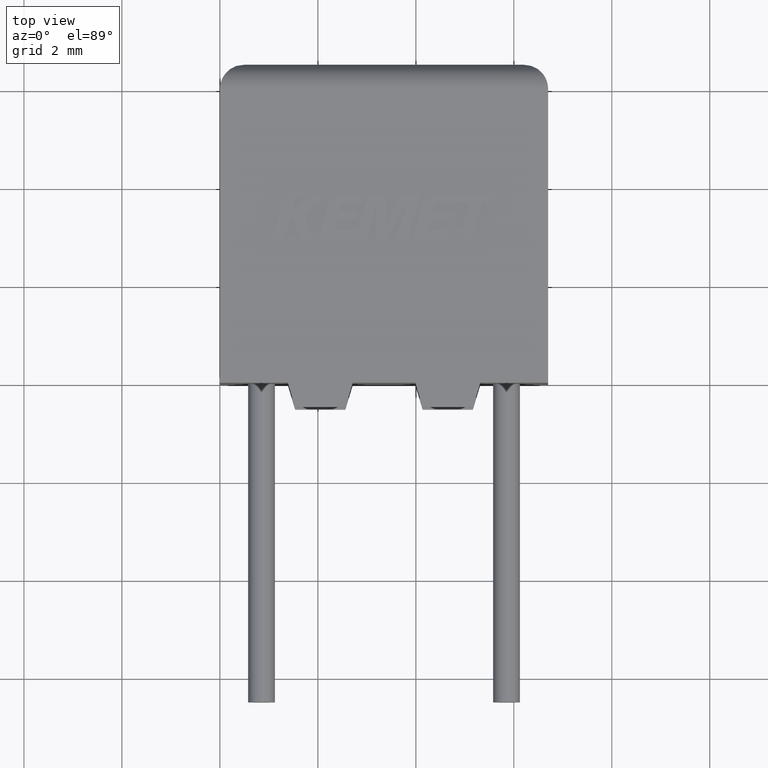
[diagram: clean part render]
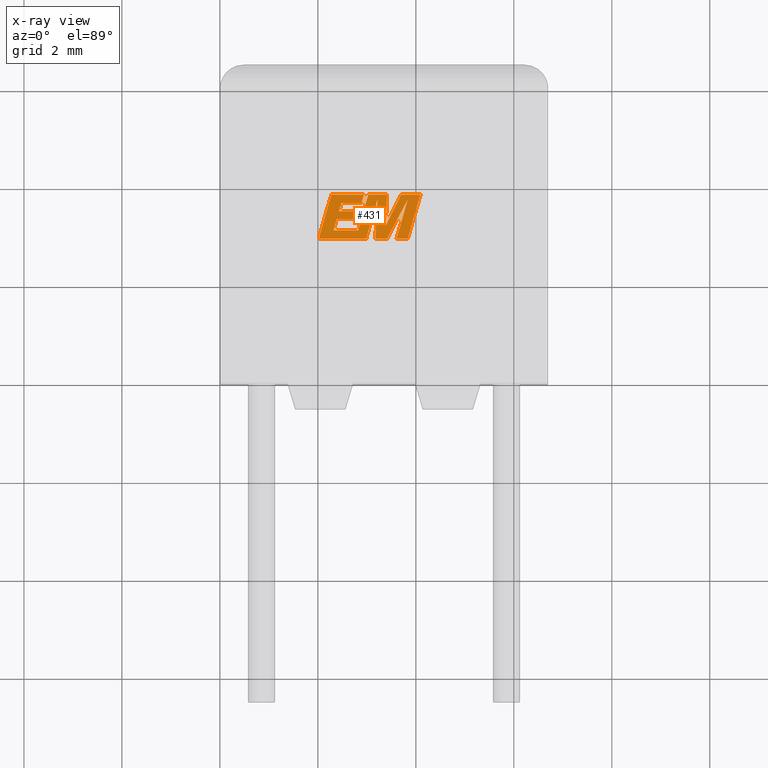
[diagram: x-ray — body ghosted, one internal face saturated and labeled with its STEP entity id]
A machine part, top view, then the same camera in x-ray: the body is ghosted and one INTERNAL B-rep face — a face not visible from any outside direction — is saturated and labeled: STEP entity #431.
In plain terms, the highlighted planar face has unit normal (0, 0, -1).
Its self-contained STEP definition (entity closure, byte-faithful):
#5 = DIRECTION ( 'NONE',  ( 1.000000000000000000, 0.000000000000000000, 0.000000000000000000 ) ) ;
#7 = EDGE_CURVE ( 'NONE', #2830, #1420, #2780, .T. ) ;
#19 = EDGE_CURVE ( 'NONE', #922, #2758, #1514, .T. ) ;
#42 = CARTESIAN_POINT ( 'NONE',  ( 2.482093706379870035, 3.669082942595895513, 3.000000000000000000 ) ) ;
#48 = EDGE_CURVE ( 'NONE', #1420, #922, #1259, .T. ) ;
#60 = LINE ( 'NONE', #42, #1193 ) ;
#88 = LINE ( 'NONE', #329, #885 ) ;
#101 = VECTOR ( 'NONE', #1807, 1000.000000000000227 ) ;
#113 = DIRECTION ( 'NONE',  ( -0.2760118818968561594, -0.9611542233438689076, 0.000000000000000000 ) ) ;
#130 = ORIENTED_EDGE ( 'NONE', *, *, #2369, .F. ) ;
#166 = DIRECTION ( 'NONE',  ( -1.000000000000000000, 0.000000000000000000, 0.000000000000000000 ) ) ;
#174 = ORIENTED_EDGE ( 'NONE', *, *, #1363, .F. ) ;
#175 = LINE ( 'NONE', #1186, #565 ) ;
#236 = ORIENTED_EDGE ( 'NONE', *, *, #19, .F. ) ;
#262 = CARTESIAN_POINT ( 'NONE',  ( 3.606084552952748545, 2.939949999999972530, 3.000000000000000000 ) ) ;
#290 = CARTESIAN_POINT ( 'NONE',  ( 2.433353592070187421, 3.501581241895021623, 3.000000000000000000 ) ) ;
#303 = DIRECTION ( 'NONE',  ( 1.000000000000000000, 4.833865254349439685E-15, 0.000000000000000000 ) ) ;
#312 = DIRECTION ( 'NONE',  ( 1.000000000000000000, 0.000000000000000000, 0.000000000000000000 ) ) ;
#329 = CARTESIAN_POINT ( 'NONE',  ( 2.821297519877196791, 3.111279716422085784, 3.000000000000000000 ) ) ;
#358 = LINE ( 'NONE', #1104, #690 ) ;
#363 = CARTESIAN_POINT ( 'NONE',  ( 2.772327396041934122, 3.335100893027513003, 3.000000000000000000 ) ) ;
#371 = LINE ( 'NONE', #1113, #1285 ) ;
#376 = VECTOR ( 'NONE', #2288, 1000.000000000000000 ) ;
#380 = CARTESIAN_POINT ( 'NONE',  ( 2.986808542158105872, 2.939949999999972530, 3.000000000000000000 ) ) ;
#392 = EDGE_CURVE ( 'NONE', #2758, #687, #1550, .T. ) ;
#431 = ADVANCED_FACE ( 'NONE', ( #3068 ), #833, .T. ) ;
#434 = VERTEX_POINT ( 'NONE', #939 ) ;
#561 = VECTOR ( 'NONE', #2678, 1000.000000000000000 ) ;
#565 = VECTOR ( 'NONE', #2936, 1000.000000000000227 ) ;
#574 = ORIENTED_EDGE ( 'NONE', *, *, #2401, .F. ) ;
#587 = DIRECTION ( 'NONE',  ( -1.000000000000000000, 0.000000000000000000, 0.000000000000000000 ) ) ;
#594 = ORIENTED_EDGE ( 'NONE', *, *, #2408, .F. ) ;
#599 = ORIENTED_EDGE ( 'NONE', *, *, #2327, .F. ) ;
#602 = ORIENTED_EDGE ( 'NONE', *, *, #2472, .F. ) ;
#621 = CARTESIAN_POINT ( 'NONE',  ( 4.093841663165447287, 3.840497543485195120, 3.000000000000000000 ) ) ;
#661 = ORIENTED_EDGE ( 'NONE', *, *, #1647, .F. ) ;
#687 = VERTEX_POINT ( 'NONE', #1336 ) ;
#690 = VECTOR ( 'NONE', #587, 1000.000000000000000 ) ;
#695 = EDGE_CURVE ( 'NONE', #3208, #760, #2124, .T. ) ;
#711 = EDGE_CURVE ( 'NONE', #2205, #1862, #371, .T. ) ;
#728 = VECTOR ( 'NONE', #1353, 1000.000000000000000 ) ;
#747 = VERTEX_POINT ( 'NONE', #1707 ) ;
#752 = EDGE_CURVE ( 'NONE', #2169, #2044, #2406, .T. ) ;
#760 = VERTEX_POINT ( 'NONE', #3163 ) ;
#763 = CARTESIAN_POINT ( 'NONE',  ( 2.772327396041934122, 3.335100893027513003, 3.000000000000000000 ) ) ;
#766 = EDGE_CURVE ( 'NONE', #2044, #2745, #175, .T. ) ;
#780 = ORIENTED_EDGE ( 'NONE', *, *, #2419, .F. ) ;
#785 = VECTOR ( 'NONE', #303, 1000.000000000000000 ) ;
#832 = VERTEX_POINT ( 'NONE', #2998 ) ;
#833 = PLANE ( 'NONE',  #2286 ) ;
#842 = CARTESIAN_POINT ( 'NONE',  ( 3.379780772214605378, 3.197134807802966883, 3.000000000000000000 ) ) ;
#882 = VECTOR ( 'NONE', #1492, 1000.000000000000227 ) ;
#884 = DIRECTION ( 'NONE',  ( 0.2740217765954066076, 0.9617234872620595842, 0.000000000000000000 ) ) ;
#885 = VECTOR ( 'NONE', #2797, 1000.000000000000000 ) ;
#921 = CARTESIAN_POINT ( 'NONE',  ( 3.606084552952748545, 2.939949999999972530, 3.000000000000000000 ) ) ;
#922 = VERTEX_POINT ( 'NONE', #3249 ) ;
#936 = EDGE_LOOP ( 'NONE', ( #594, #2414, #1696, #130, #2429, #2788, #1231, #2005, #661, #574, #599, #1894, #780, #2078, #236, #2097, #2202, #602, #174, #2053, #1384, #1059, #2315 ) ) ;
#939 = CARTESIAN_POINT ( 'NONE',  ( 3.172070264286760644, 2.939949999999972530, 3.000000000000000000 ) ) ;
#942 = CARTESIAN_POINT ( 'NONE',  ( 3.698867635465806103, 3.840497543485195120, 3.000000000000000000 ) ) ;
#957 = VERTEX_POINT ( 'NONE', #1861 ) ;
#965 = EDGE_CURVE ( 'NONE', #1335, #832, #2338, .T. ) ;
#1017 = VERTEX_POINT ( 'NONE', #3112 ) ;
#1059 = ORIENTED_EDGE ( 'NONE', *, *, #695, .F. ) ;
#1090 = DIRECTION ( 'NONE',  ( 0.000000000000000000, 0.000000000000000000, -1.000000000000000000 ) ) ;
#1104 = CARTESIAN_POINT ( 'NONE',  ( 3.414413255620535992, 3.840497543485195120, 3.000000000000000000 ) ) ;
#1113 = CARTESIAN_POINT ( 'NONE',  ( 2.892392369763397308, 3.669082942595895513, 3.000000000000000000 ) ) ;
#1160 = VERTEX_POINT ( 'NONE', #1626 ) ;
#1182 = CARTESIAN_POINT ( 'NONE',  ( 3.834927604257575062, 2.939949999999972530, 3.000000000000000000 ) ) ;
#1186 = CARTESIAN_POINT ( 'NONE',  ( 3.834927604257575062, 2.939949999999972530, 3.000000000000000000 ) ) ;
#1193 = VECTOR ( 'NONE', #312, 1000.000000000000000 ) ;
#1209 = CARTESIAN_POINT ( 'NONE',  ( 2.385856624496192069, 3.335100893027513003, 3.000000000000000000 ) ) ;
#1215 = CARTESIAN_POINT ( 'NONE',  ( 3.030901917078393737, 3.840497543485195120, 3.000000000000000000 ) ) ;
#1231 = ORIENTED_EDGE ( 'NONE', *, *, #1929, .F. ) ;
#1259 = LINE ( 'NONE', #763, #882 ) ;
#1285 = VECTOR ( 'NONE', #3114, 1000.000000000000000 ) ;
#1301 = LINE ( 'NONE', #621, #376 ) ;
#1312 = LINE ( 'NONE', #3087, #785 ) ;
#1329 = LINE ( 'NONE', #1816, #2671 ) ;
#1335 = VERTEX_POINT ( 'NONE', #2080 ) ;
#1336 = CARTESIAN_POINT ( 'NONE',  ( 2.482093706379870035, 3.669082942595895513, 3.000000000000000000 ) ) ;
#1353 = DIRECTION ( 'NONE',  ( 0.4668459304955211997, 0.8843386665637610333, 0.000000000000000000 ) ) ;
#1357 = DIRECTION ( 'NONE',  ( 0.05375259206908266502, 0.9985542843760947251, 0.000000000000000000 ) ) ;
#1363 = EDGE_CURVE ( 'NONE', #957, #1629, #88, .T. ) ;
#1369 = LINE ( 'NONE', #2623, #101 ) ;
#1384 = ORIENTED_EDGE ( 'NONE', *, *, #2629, .F. ) ;
#1420 = VERTEX_POINT ( 'NONE', #363 ) ;
#1459 = CARTESIAN_POINT ( 'NONE',  ( 2.941077719899798826, 3.840497543485195120, 3.000000000000000000 ) ) ;
#1492 = DIRECTION ( 'NONE',  ( 0.2746459304916903932, 0.9615454294334477847, 0.000000000000000000 ) ) ;
#1514 = LINE ( 'NONE', #2759, #1880 ) ;
#1550 = LINE ( 'NONE', #290, #2436 ) ;
#1559 = VERTEX_POINT ( 'NONE', #2316 ) ;
#1573 = VECTOR ( 'NONE', #1606, 1000.000000000000000 ) ;
#1579 = VECTOR ( 'NONE', #3018, 1000.000000000000114 ) ;
#1584 = CARTESIAN_POINT ( 'NONE',  ( 2.322083744593155252, 3.111279716422085784, 3.000000000000000000 ) ) ;
#1606 = DIRECTION ( 'NONE',  ( -1.000000000000000000, 0.000000000000000000, 0.000000000000000000 ) ) ;
#1626 = CARTESIAN_POINT ( 'NONE',  ( 2.986808542158105872, 2.939949999999972530, 3.000000000000000000 ) ) ;
#1629 = VERTEX_POINT ( 'NONE', #1584 ) ;
#1647 = EDGE_CURVE ( 'NONE', #1559, #1160, #1312, .T. ) ;
#1668 = DIRECTION ( 'NONE',  ( 0.2759782365590801034, 0.9611638845408936316, 0.000000000000000000 ) ) ;
#1696 = ORIENTED_EDGE ( 'NONE', *, *, #752, .F. ) ;
#1707 = CARTESIAN_POINT ( 'NONE',  ( 2.275783374213577570, 3.840497543485195120, 3.000000000000000000 ) ) ;
#1785 = DIRECTION ( 'NONE',  ( -0.2762517575166160144, -0.9610853065513907945, 0.000000000000000000 ) ) ;
#1807 = DIRECTION ( 'NONE',  ( -0.05596501978068205152, -0.9984327301130245802, 0.000000000000000000 ) ) ;
#1816 = CARTESIAN_POINT ( 'NONE',  ( 3.172070264286760644, 2.939949999999972530, 3.000000000000000000 ) ) ;
#1835 = CARTESIAN_POINT ( 'NONE',  ( 0.03041219601240493370, -2.057123217232910584, 2.999999999999999112 ) ) ;
#1861 = CARTESIAN_POINT ( 'NONE',  ( 2.821297519877196791, 3.111279716422085784, 3.000000000000000000 ) ) ;
#1862 = VERTEX_POINT ( 'NONE', #1459 ) ;
#1867 = CARTESIAN_POINT ( 'NONE',  ( 2.433353592070187421, 3.501581241895021623, 3.000000000000000000 ) ) ;
#1870 = CARTESIAN_POINT ( 'NONE',  ( 2.275783374213577570, 3.840497543485195120, 3.000000000000000000 ) ) ;
#1880 = VECTOR ( 'NONE', #2514, 1000.000000000000000 ) ;
#1894 = ORIENTED_EDGE ( 'NONE', *, *, #711, .F. ) ;
#1929 = EDGE_CURVE ( 'NONE', #2210, #434, #1369, .T. ) ;
#2005 = ORIENTED_EDGE ( 'NONE', *, *, #2465, .F. ) ;
#2022 = CARTESIAN_POINT ( 'NONE',  ( 3.698867635465806103, 3.840497543485195120, 3.000000000000000000 ) ) ;
#2032 = LINE ( 'NONE', #1215, #2979 ) ;
#2043 = LINE ( 'NONE', #2022, #1579 ) ;
#2044 = VERTEX_POINT ( 'NONE', #1182 ) ;
#2051 = CARTESIAN_POINT ( 'NONE',  ( 2.941077719899798826, 3.840497543485195120, 3.000000000000000000 ) ) ;
#2053 = ORIENTED_EDGE ( 'NONE', *, *, #2211, .F. ) ;
#2078 = ORIENTED_EDGE ( 'NONE', *, *, #392, .F. ) ;
#2080 = CARTESIAN_POINT ( 'NONE',  ( 3.412148185760601748, 2.939949999999972530, 3.000000000000000000 ) ) ;
#2089 = CARTESIAN_POINT ( 'NONE',  ( 3.379780772214605378, 3.197134807802966883, 3.000000000000000000 ) ) ;
#2097 = ORIENTED_EDGE ( 'NONE', *, *, #48, .F. ) ;
#2124 = LINE ( 'NONE', #842, #2440 ) ;
#2162 = CARTESIAN_POINT ( 'NONE',  ( 4.093841663165447287, 3.840497543485195120, 3.000000000000000000 ) ) ;
#2169 = VERTEX_POINT ( 'NONE', #262 ) ;
#2202 = ORIENTED_EDGE ( 'NONE', *, *, #7, .F. ) ;
#2205 = VERTEX_POINT ( 'NONE', #2488 ) ;
#2210 = VERTEX_POINT ( 'NONE', #2473 ) ;
#2211 = EDGE_CURVE ( 'NONE', #1017, #957, #2032, .T. ) ;
#2286 = AXIS2_PLACEMENT_3D ( 'NONE', #1835, #1090, #166 ) ;
#2288 = DIRECTION ( 'NONE',  ( -1.000000000000000000, 0.000000000000000000, 0.000000000000000000 ) ) ;
#2307 = EDGE_CURVE ( 'NONE', #434, #1335, #1329, .T. ) ;
#2311 = CARTESIAN_POINT ( 'NONE',  ( 3.412148185760601748, 2.939949999999972530, 3.000000000000000000 ) ) ;
#2315 = ORIENTED_EDGE ( 'NONE', *, *, #3005, .F. ) ;
#2316 = CARTESIAN_POINT ( 'NONE',  ( 2.016642043262992789, 2.939949999999971642, 3.000000000000000000 ) ) ;
#2327 = EDGE_CURVE ( 'NONE', #1862, #747, #2568, .T. ) ;
#2338 = LINE ( 'NONE', #2311, #728 ) ;
#2342 = VECTOR ( 'NONE', #5, 1000.000000000000000 ) ;
#2354 = CARTESIAN_POINT ( 'NONE',  ( 3.837424850563639911, 3.745544681468894854, 3.000000000000000000 ) ) ;
#2368 = LINE ( 'NONE', #2928, #2561 ) ;
#2369 = EDGE_CURVE ( 'NONE', #832, #2169, #2834, .T. ) ;
#2401 = EDGE_CURVE ( 'NONE', #747, #1559, #3109, .T. ) ;
#2406 = LINE ( 'NONE', #921, #561 ) ;
#2408 = EDGE_CURVE ( 'NONE', #2745, #2802, #1301, .T. ) ;
#2414 = ORIENTED_EDGE ( 'NONE', *, *, #766, .F. ) ;
#2419 = EDGE_CURVE ( 'NONE', #687, #2205, #60, .T. ) ;
#2429 = ORIENTED_EDGE ( 'NONE', *, *, #965, .F. ) ;
#2436 = VECTOR ( 'NONE', #2796, 1000.000000000000000 ) ;
#2440 = VECTOR ( 'NONE', #1357, 1000.000000000000114 ) ;
#2465 = EDGE_CURVE ( 'NONE', #1160, #2210, #2646, .T. ) ;
#2472 = EDGE_CURVE ( 'NONE', #1629, #2830, #2368, .T. ) ;
#2473 = CARTESIAN_POINT ( 'NONE',  ( 3.217009744963004625, 3.741683807247400129, 3.000000000000000000 ) ) ;
#2488 = CARTESIAN_POINT ( 'NONE',  ( 2.892392369763397308, 3.669082942595895513, 3.000000000000000000 ) ) ;
#2514 = DIRECTION ( 'NONE',  ( -1.000000000000000000, 0.000000000000000000, 0.000000000000000000 ) ) ;
#2561 = VECTOR ( 'NONE', #884, 1000.000000000000114 ) ;
#2568 = LINE ( 'NONE', #2051, #1573 ) ;
#2618 = VECTOR ( 'NONE', #2864, 1000.000000000000114 ) ;
#2623 = CARTESIAN_POINT ( 'NONE',  ( 3.217009744963004625, 3.741683807247400129, 3.000000000000000000 ) ) ;
#2629 = EDGE_CURVE ( 'NONE', #760, #1017, #358, .T. ) ;
#2646 = LINE ( 'NONE', #380, #3032 ) ;
#2671 = VECTOR ( 'NONE', #2798, 1000.000000000000000 ) ;
#2678 = DIRECTION ( 'NONE',  ( 1.000000000000000000, 0.000000000000000000, 0.000000000000000000 ) ) ;
#2745 = VERTEX_POINT ( 'NONE', #2162 ) ;
#2758 = VERTEX_POINT ( 'NONE', #1867 ) ;
#2759 = CARTESIAN_POINT ( 'NONE',  ( 2.819879127789272300, 3.501581241895021623, 3.000000000000000000 ) ) ;
#2780 = LINE ( 'NONE', #3240, #2342 ) ;
#2788 = ORIENTED_EDGE ( 'NONE', *, *, #2307, .F. ) ;
#2796 = DIRECTION ( 'NONE',  ( 0.2793947940878287461, 0.9601763114327596105, 0.000000000000000000 ) ) ;
#2797 = DIRECTION ( 'NONE',  ( -1.000000000000000000, 0.000000000000000000, 0.000000000000000000 ) ) ;
#2798 = DIRECTION ( 'NONE',  ( 1.000000000000000000, 0.000000000000000000, 0.000000000000000000 ) ) ;
#2802 = VERTEX_POINT ( 'NONE', #942 ) ;
#2830 = VERTEX_POINT ( 'NONE', #1209 ) ;
#2834 = LINE ( 'NONE', #2354, #3085 ) ;
#2864 = DIRECTION ( 'NONE',  ( -0.2765379750249959967, -0.9610029908221278117, 0.000000000000000000 ) ) ;
#2928 = CARTESIAN_POINT ( 'NONE',  ( 2.322083744593155252, 3.111279716422085784, 3.000000000000000000 ) ) ;
#2936 = DIRECTION ( 'NONE',  ( 0.2763139702539115783, 0.9610674221107072812, 0.000000000000000000 ) ) ;
#2979 = VECTOR ( 'NONE', #1785, 1000.000000000000114 ) ;
#2998 = CARTESIAN_POINT ( 'NONE',  ( 3.837424850563639911, 3.745544681468894854, 3.000000000000000000 ) ) ;
#3005 = EDGE_CURVE ( 'NONE', #2802, #3208, #2043, .T. ) ;
#3018 = DIRECTION ( 'NONE',  ( -0.4443210308329058611, -0.8958676361827030421, 0.000000000000000000 ) ) ;
#3032 = VECTOR ( 'NONE', #1668, 1000.000000000000227 ) ;
#3068 = FACE_OUTER_BOUND ( 'NONE', #936, .T. ) ;
#3085 = VECTOR ( 'NONE', #113, 1000.000000000000114 ) ;
#3087 = CARTESIAN_POINT ( 'NONE',  ( 2.826513806673565554, 2.939949999999971642, 3.000000000000000000 ) ) ;
#3109 = LINE ( 'NONE', #1870, #2618 ) ;
#3112 = CARTESIAN_POINT ( 'NONE',  ( 3.030901917078393737, 3.840497543485195120, 3.000000000000000000 ) ) ;
#3114 = DIRECTION ( 'NONE',  ( 0.2732148821745924439, 0.9619530280415585777, 0.000000000000000000 ) ) ;
#3163 = CARTESIAN_POINT ( 'NONE',  ( 3.414413255620535992, 3.840497543485195120, 3.000000000000000000 ) ) ;
#3208 = VERTEX_POINT ( 'NONE', #2089 ) ;
#3240 = CARTESIAN_POINT ( 'NONE',  ( 2.385856624496192069, 3.335100893027513003, 3.000000000000000000 ) ) ;
#3249 = CARTESIAN_POINT ( 'NONE',  ( 2.819879127789272300, 3.501581241895021623, 3.000000000000000000 ) ) ;